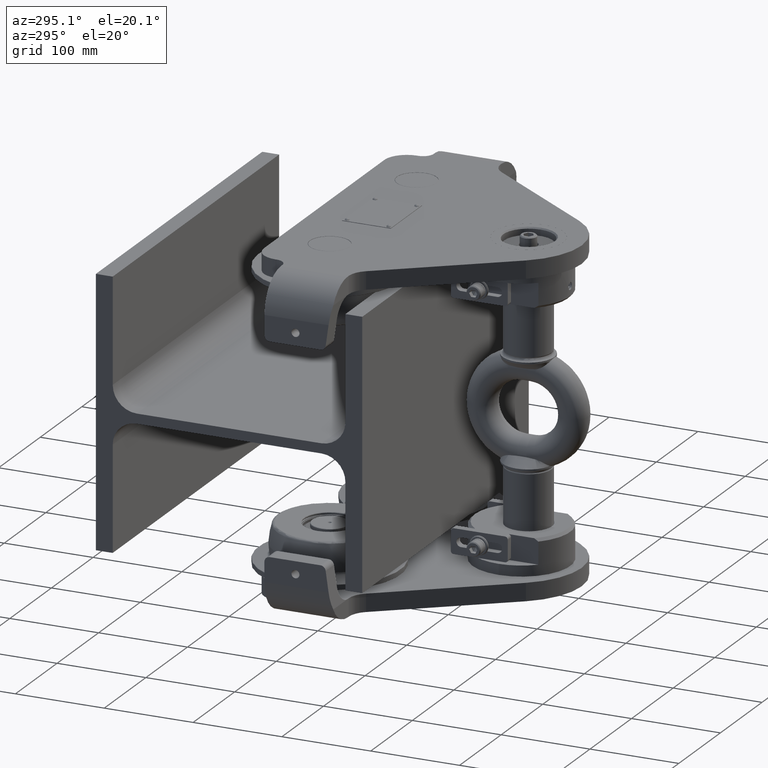
[diagram: clean part render]
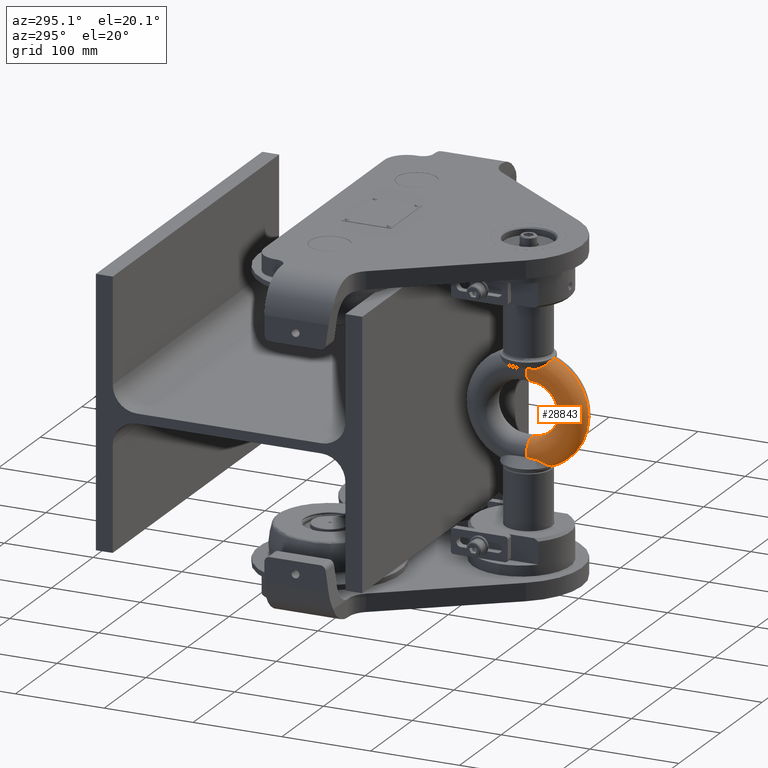
[diagram: same view with one face highlighted and labeled with its STEP entity id]
A machine part, auxiliary view. The second image highlights one B-rep face of the part: STEP entity #28843.
In plain terms, the highlighted toroidal blend (fillet) surface has major radius 46.5 mm and minor (blend) radius 16.5 mm.
Its self-contained STEP definition (entity closure, byte-faithful):
#124 = AXIS2_PLACEMENT_3D ( 'NONE', #29967, #49781, #50134 ) ;
#1295 = CARTESIAN_POINT ( 'NONE',  ( -16.14970968157150100, -258.5730623694667500, -48.85419018527901600 ) ) ;
#1317 = AXIS2_PLACEMENT_3D ( 'NONE', #53258, #21032, #28417 ) ;
#1372 = VERTEX_POINT ( 'NONE', #48301 ) ;
#1389 = CARTESIAN_POINT ( 'NONE',  ( -16.14970968157150100, -258.5730623694667500, -48.85419018527901600 ) ) ;
#1464 = CARTESIAN_POINT ( 'NONE',  ( -16.14970968157150100, -258.5730623694667500, 48.85419018527901600 ) ) ;
#1622 = CARTESIAN_POINT ( 'NONE',  ( -6.789701822044421000, -271.6939700852456100, -57.00000000000000000 ) ) ;
#1713 = VERTEX_POINT ( 'NONE', #1860 ) ;
#1748 = CARTESIAN_POINT ( 'NONE',  ( -14.41843490700063100, -265.7997126900801800, -51.71288681910633000 ) ) ;
#1860 = CARTESIAN_POINT ( 'NONE',  ( -16.50000000000000000, -248.4999999999993200, -46.50000000000000000 ) ) ;
#2122 = DIRECTION ( 'NONE',  ( 2.126349141558169100E-017, 1.000000000000000000, -2.126349141558169100E-017 ) ) ;
#2186 = CARTESIAN_POINT ( 'NONE',  ( -1.169121845982888900, -272.4823305312021400, 58.22322194431580300 ) ) ;
#2367 = CARTESIAN_POINT ( 'NONE',  ( -0.5821584581479668500, -272.5000000000001700, 58.24946351684271000 ) ) ;
#2482 = CARTESIAN_POINT ( 'NONE',  ( -5.615969907801971900E-016, -248.4999999999999700, 46.50000000000000000 ) ) ;
#3564 = CARTESIAN_POINT ( 'NONE',  ( -11.34520208129735000, -269.4414516651685900, 54.62953950804496400 ) ) ;
#3930 = CARTESIAN_POINT ( 'NONE',  ( -15.52368704440469900, -262.7567778237648800, 50.11044335773173900 ) ) ;
#4057 = DIRECTION ( 'NONE',  ( -2.126349141558174900E-017, -1.000000000000000000, -1.406712654387168700E-014 ) ) ;
#4701 = EDGE_CURVE ( 'NONE', #11834, #1713, #29710, .T. ) ;
#5197 = DIRECTION ( 'NONE',  ( 1.000000000000000000, -2.126349141558169100E-017, -4.160515420014122300E-018 ) ) ;
#5369 = CARTESIAN_POINT ( 'NONE',  ( -1.169121845982884300, -272.4823305312021400, -58.22322194431580300 ) ) ;
#5789 = ORIENTED_EDGE ( 'NONE', *, *, #43822, .F. ) ;
#5916 = CARTESIAN_POINT ( 'NONE',  ( -5.718996009394106600, -271.9518185962942300, -57.41698542281732600 ) ) ;
#5953 = CARTESIAN_POINT ( 'NONE',  ( -7.550609578108539100E-016, -248.4999999999999700, 1.306263848640637400E-016 ) ) ;
#6148 = CARTESIAN_POINT ( 'NONE',  ( -16.14970968157150100, -258.5730623694667500, 48.85419018527901600 ) ) ;
#6492 = CARTESIAN_POINT ( 'NONE',  ( -6.789701822044473400, -271.6939700852458400, 57.00000000000000000 ) ) ;
#6898 = ORIENTED_EDGE ( 'NONE', *, *, #10924, .T. ) ;
#7603 = CARTESIAN_POINT ( 'NONE',  ( -16.43063562197320200, -248.4999999999999700, 48.01136132607178600 ) ) ;
#9347 = AXIS2_PLACEMENT_3D ( 'NONE', #5953, #38659, #26345 ) ;
#9782 = B_SPLINE_CURVE_WITH_KNOTS ( 'NONE', 3,
 ( #6148, #22761, #47034, #38667, #38508, #10237 ),
 .UNSPECIFIED., .F., .F.,
 ( 4, 2, 4 ),
 ( 0.0000000000000000000, 0.005056082113877081300, 0.01011216422775416300 ),
 .UNSPECIFIED. ) ;
#9963 = CARTESIAN_POINT ( 'NONE',  ( -11.86317710511400000, -269.0009010043097500, -54.22865603293382000 ) ) ;
#10053 = CARTESIAN_POINT ( 'NONE',  ( -6.789701822044473400, -271.6939700852458400, 57.00000000000000000 ) ) ;
#10237 = CARTESIAN_POINT ( 'NONE',  ( -16.43063562197320200, -248.4999999999999700, 48.01136132607178600 ) ) ;
#10881 = EDGE_LOOP ( 'NONE', ( #14130, #5789, #26892, #6898, #16997, #37178, #43427, #21424, #11336, #23520, #17595, #27347 ) ) ;
#10924 = EDGE_CURVE ( 'NONE', #52300, #19396, #9782, .T. ) ;
#11279 = CARTESIAN_POINT ( 'NONE',  ( -15.83172462128890400, -261.2840947546191600, 49.53129400317468600 ) ) ;
#11336 = ORIENTED_EDGE ( 'NONE', *, *, #19872, .T. ) ;
#11442 = CARTESIAN_POINT ( 'NONE',  ( -9.541050357058042100, -270.6182330936538800, 55.73941017199112500 ) ) ;
#11538 = EDGE_CURVE ( 'NONE', #46534, #11834, #26295, .T. ) ;
#11834 = VERTEX_POINT ( 'NONE', #38594 ) ;
#11996 = CARTESIAN_POINT ( 'NONE',  ( -16.14970968157150100, -258.5730623694667500, 48.85419018527901600 ) ) ;
#13387 = VERTEX_POINT ( 'NONE', #25268 ) ;
#13468 = CIRCLE ( 'NONE', #34353, 63.00000000000000000 ) ;
#13770 = CARTESIAN_POINT ( 'NONE',  ( -11.32339452381541100, -269.4412280998598700, -54.63134564717974900 ) ) ;
#13872 = CARTESIAN_POINT ( 'NONE',  ( -4.615686157747745700, -272.1531507364128400, 57.72578106997546900 ) ) ;
#13956 = CARTESIAN_POINT ( 'NONE',  ( -15.23141514536810000, -263.8315885877948400, -50.59971117742660600 ) ) ;
#14130 = ORIENTED_EDGE ( 'NONE', *, *, #40405, .F. ) ;
#14135 = CARTESIAN_POINT ( 'NONE',  ( -12.86108947759746200, -268.0671371026022000, -53.39142813885433000 ) ) ;
#14310 = CARTESIAN_POINT ( 'NONE',  ( -8.226983262885905600, -271.2627356857553300, -56.40426757459351800 ) ) ;
#14332 = EDGE_CURVE ( 'NONE', #48895, #29801, #40669, .T. ) ;
#14506 = CARTESIAN_POINT ( 'NONE',  ( -14.57284169700256300, -265.4847800982709600, -51.51764444182787600 ) ) ;
#14535 = VERTEX_POINT ( 'NONE', #48859 ) ;
#14621 = AXIS2_PLACEMENT_3D ( 'NONE', #28211, #4057, #24067 ) ;
#16997 = ORIENTED_EDGE ( 'NONE', *, *, #27534, .F. ) ;
#17121 = DIRECTION ( 'NONE',  ( 2.126349141558169400E-017, 1.000000000000000000, 0.0000000000000000000 ) ) ;
#17527 = CIRCLE ( 'NONE', #14621, 16.50000000000000000 ) ;
#17595 = ORIENTED_EDGE ( 'NONE', *, *, #14332, .T. ) ;
#17845 = CARTESIAN_POINT ( 'NONE',  ( -16.27217791761417900, -256.9057744790297900, -48.60082342732086900 ) ) ;
#17966 = CARTESIAN_POINT ( 'NONE',  ( -16.09073594290872200, -259.3741769979857800, -48.97655935730084300 ) ) ;
#18323 = CARTESIAN_POINT ( 'NONE',  ( -9.542474760975393300, -270.6366440345710800, -55.74942739138111800 ) ) ;
#18331 = CIRCLE ( 'NONE', #124, 16.50000000000000000 ) ;
#19396 = VERTEX_POINT ( 'NONE', #7603 ) ;
#19428 = CARTESIAN_POINT ( 'NONE',  ( -2.775728176403982500E-015, -248.4999999999999700, 30.00000000000000000 ) ) ;
#19658 = AXIS2_PLACEMENT_3D ( 'NONE', #2482, #2122, #47324 ) ;
#19787 = CARTESIAN_POINT ( 'NONE',  ( -13.51089859848823100, -267.2638977733029200, 52.73977358315009700 ) ) ;
#19872 = EDGE_CURVE ( 'NONE', #1713, #1372, #17527, .T. ) ;
#19969 = CARTESIAN_POINT ( 'NONE',  ( -16.09073587124079900, -259.3741779715415400, 48.97655950601009800 ) ) ;
#20133 = CARTESIAN_POINT ( 'NONE',  ( -10.47097514471091800, -270.0534991549014300, 55.19895987007695500 ) ) ;
#21032 = DIRECTION ( 'NONE',  ( 1.000000000000000000, -2.126349141558169100E-017, -4.160515420014122300E-018 ) ) ;
#21424 = ORIENTED_EDGE ( 'NONE', *, *, #4701, .T. ) ;
#21429 = CARTESIAN_POINT ( 'NONE',  ( -16.43063562197319900, -248.4999999999993200, -48.01136132607175700 ) ) ;
#21815 = CARTESIAN_POINT ( 'NONE',  ( -1.507732535138539800E-015, -272.5000000000001700, -58.24946351684271700 ) ) ;
#22296 = CARTESIAN_POINT ( 'NONE',  ( -14.99815633690421300, -264.5137042511241200, -50.95146419734153700 ) ) ;
#22482 = CARTESIAN_POINT ( 'NONE',  ( -16.00775697945099600, -260.1516179651798100, -49.16671881102170300 ) ) ;
#22761 = CARTESIAN_POINT ( 'NONE',  ( -16.27217791761414400, -256.9057744790299000, 48.60082342732093300 ) ) ;
#23099 = DIRECTION ( 'NONE',  ( -2.126349141558174900E-017, -1.000000000000000000, -1.406712654387168700E-014 ) ) ;
#23162 = CARTESIAN_POINT ( 'NONE',  ( -6.789701822044421000, -271.6939700852456100, -57.00000000000000000 ) ) ;
#23245 = B_SPLINE_CURVE_WITH_KNOTS ( 'NONE', 3,
 ( #21429, #50054, #42293, #41742, #17845, #1295 ),
 .UNSPECIFIED., .F., .F.,
 ( 4, 2, 4 ),
 ( 2.775557561562891400E-017, 0.005056082113877437800, 0.01011216422775484800 ),
 .UNSPECIFIED. ) ;
#23520 = ORIENTED_EDGE ( 'NONE', *, *, #45305, .T. ) ;
#24067 = DIRECTION ( 'NONE',  ( 1.000000000000000000, 0.0000000000000000000, 0.0000000000000000000 ) ) ;
#24291 = CARTESIAN_POINT ( 'NONE',  ( -12.85498062700979300, -268.0516255899330500, 53.38296045857281800 ) ) ;
#24542 = CARTESIAN_POINT ( 'NONE',  ( -1.507732535138539800E-015, -272.5000000000001700, -58.24946351684271700 ) ) ;
#25121 = TOROIDAL_SURFACE ( 'NONE', #9347, 46.50000000000000000, 16.50000000000000000 ) ;
#25268 = CARTESIAN_POINT ( 'NONE',  ( -16.50000000000000000, -248.4999999999999700, 46.50000000000000000 ) ) ;
#25561 = CARTESIAN_POINT ( 'NONE',  ( -16.14970968157150100, -258.5730623694667500, -48.85419018527901600 ) ) ;
#26244 = CARTESIAN_POINT ( 'NONE',  ( -15.60961632101510500, -262.3966882880848700, -49.95687587011565300 ) ) ;
#26295 = CIRCLE ( 'NONE', #1317, 30.00000000000000000 ) ;
#26345 = DIRECTION ( 'NONE',  ( -4.160515420014122300E-018, 1.625079160297210900E-050, -1.000000000000000000 ) ) ;
#26424 = CARTESIAN_POINT ( 'NONE',  ( -13.30570346881358100, -267.5580710833979800, -52.95966035064181200 ) ) ;
#26870 = CARTESIAN_POINT ( 'NONE',  ( -2.337159246426804500, -272.4115896409632000, 58.11736992380962600 ) ) ;
#26892 = ORIENTED_EDGE ( 'NONE', *, *, #51714, .T. ) ;
#27347 = ORIENTED_EDGE ( 'NONE', *, *, #42111, .T. ) ;
#27534 = EDGE_CURVE ( 'NONE', #13387, #19396, #34215, .T. ) ;
#27781 = B_SPLINE_CURVE_WITH_KNOTS ( 'NONE', 3,
 ( #6492, #39179, #43734, #48583, #11442, #40032, #20133, #3564, #44423, #36640, #24291, #32316, #19787, #48395, #28077, #3930, #44809, #44629, #11279, #48771, #19969, #11996 ),
 .UNSPECIFIED., .F., .F.,
 ( 4, 2, 2, 2, 2, 2, 2, 2, 2, 2, 4 ),
 ( 1.323970232273443100E-017, 0.002407351298757583600, 0.003611026948136372600, 0.004814702597515162000, 0.007222053896272820700, 0.008425729545651693800, 0.009629405195030568700, 0.01444410779254603700, 0.01564778344192501900, 0.01685145909130400200, 0.01925881039006211900 ),
 .UNSPECIFIED. ) ;
#28077 = CARTESIAN_POINT ( 'NONE',  ( -15.03840813540668700, -264.5426066188140900, 50.92307947960819800 ) ) ;
#28211 = CARTESIAN_POINT ( 'NONE',  ( -9.485249248414967200E-016, -248.4999999999993200, -46.50000000000000000 ) ) ;
#28417 = DIRECTION ( 'NONE',  ( 2.126349141558168800E-017, 1.000000000000000000, 0.0000000000000000000 ) ) ;
#28843 = ADVANCED_FACE ( 'NONE', ( #52658 ), #25121, .T. ) ;
#29127 = VERTEX_POINT ( 'NONE', #37008 ) ;
#29483 = B_SPLINE_CURVE_WITH_KNOTS ( 'NONE', 3,
 ( #10053, #47205, #13872, #51364, #26870, #2186, #2367, #39529 ),
 .UNSPECIFIED., .F., .F.,
 ( 4, 2, 2, 4 ),
 ( 5.568977577559528000E-007, 0.003483977110263269100, 0.005225687216516025300, 0.006967397322768782400 ),
 .UNSPECIFIED. ) ;
#29710 = CIRCLE ( 'NONE', #52603, 16.50000000000000000 ) ;
#29801 = VERTEX_POINT ( 'NONE', #23162 ) ;
#29868 = CARTESIAN_POINT ( 'NONE',  ( -7.550609578108539100E-016, -248.4999999999999700, 1.306263848640637400E-016 ) ) ;
#29967 = CARTESIAN_POINT ( 'NONE',  ( -5.615969907801971900E-016, -248.4999999999999700, 46.50000000000000000 ) ) ;
#30419 = CARTESIAN_POINT ( 'NONE',  ( -4.615686157747730600, -272.1531507364127800, -57.72578106997545400 ) ) ;
#30888 = CARTESIAN_POINT ( 'NONE',  ( -6.789701822044421000, -271.6939700852456100, -57.00000000000000000 ) ) ;
#32316 = CARTESIAN_POINT ( 'NONE',  ( -13.29989869337609300, -267.5356464809470400, 52.95500724111313000 ) ) ;
#34215 = CIRCLE ( 'NONE', #19658, 16.50000000000000000 ) ;
#34289 = CARTESIAN_POINT ( 'NONE',  ( -0.5821584581479653000, -272.5000000000001700, -58.24946351684271000 ) ) ;
#34353 = AXIS2_PLACEMENT_3D ( 'NONE', #29868, #5197, #17121 ) ;
#34597 = CARTESIAN_POINT ( 'NONE',  ( -12.12155273087833500, -268.7740795402926300, -54.02184071569097800 ) ) ;
#36640 = CARTESIAN_POINT ( 'NONE',  ( -12.62039186310729200, -268.2968772376511300, 53.59638425016678600 ) ) ;
#37008 = CARTESIAN_POINT ( 'NONE',  ( -6.789701822044473400, -271.6939700852458400, 57.00000000000000000 ) ) ;
#37178 = ORIENTED_EDGE ( 'NONE', *, *, #47854, .F. ) ;
#37686 = B_SPLINE_CURVE_WITH_KNOTS ( 'NONE', 3,
 ( #1622, #5916, #30419, #47001, #46282, #5369, #34289, #21815 ),
 .UNSPECIFIED., .F., .F.,
 ( 4, 2, 2, 4 ),
 ( 5.568977577758083100E-007, 0.003483977110263278200, 0.005225687216516029600, 0.006967397322768780600 ),
 .UNSPECIFIED. ) ;
#38508 = CARTESIAN_POINT ( 'NONE',  ( -16.42524475720238200, -250.1868489510156100, 48.06996765217583300 ) ) ;
#38594 = CARTESIAN_POINT ( 'NONE',  ( -2.775728176403985600E-015, -248.4999999999995200, -30.00000000000000000 ) ) ;
#38659 = DIRECTION ( 'NONE',  ( 1.000000000000000000, -2.126349141558169100E-017, -4.160515420014122300E-018 ) ) ;
#38667 = CARTESIAN_POINT ( 'NONE',  ( -16.41022114154714000, -251.8710428577483600, 48.15709499626952100 ) ) ;
#38740 = CARTESIAN_POINT ( 'NONE',  ( -11.04097899882738800, -269.6549622679524400, -54.82810784448082600 ) ) ;
#39095 = CARTESIAN_POINT ( 'NONE',  ( -15.76393853991887900, -261.6594500412759300, -49.66678633498651900 ) ) ;
#39179 = CARTESIAN_POINT ( 'NONE',  ( -7.530738171597009900, -271.5203600067262100, 56.70943172050239400 ) ) ;
#39529 = CARTESIAN_POINT ( 'NONE',  ( -1.023036952798754600E-015, -272.5000000000001700, 58.24946351684271700 ) ) ;
#40032 = CARTESIAN_POINT ( 'NONE',  ( -10.16649636255468400, -270.2501418079609200, 55.38407336389795400 ) ) ;
#40405 = EDGE_CURVE ( 'NONE', #14535, #45098, #13468, .T. ) ;
#40669 = B_SPLINE_CURVE_WITH_KNOTS ( 'NONE', 3,
 ( #1389, #17966, #22482, #42584, #39095, #26244, #46768, #13956, #22296, #14506, #1748, #50912, #43127, #26424, #14135, #34597, #9963, #13770, #38740, #42776, #18323, #14310, #42962, #30888 ),
 .UNSPECIFIED., .F., .F.,
 ( 4, 2, 2, 2, 2, 2, 2, 2, 2, 2, 2, 4 ),
 ( 5.763878168445254200E-017, 0.002409449002536011500, 0.003614173503803910500, 0.004818898005071808700, 0.007228347007607745600, 0.008433071508875709200, 0.009637796010143672900, 0.01204724501267970600, 0.01325196951394777700, 0.01445669401521584700, 0.01686614301775189700, 0.01927559202028795000 ),
 .UNSPECIFIED. ) ;
#41742 = CARTESIAN_POINT ( 'NONE',  ( -16.33325860116091400, -255.2304775282658800, -48.42271561141748000 ) ) ;
#42111 = EDGE_CURVE ( 'NONE', #29801, #45098, #37686, .T. ) ;
#42293 = CARTESIAN_POINT ( 'NONE',  ( -16.41022114154715800, -251.8710428577478500, -48.15709499626950000 ) ) ;
#42584 = CARTESIAN_POINT ( 'NONE',  ( -15.83134933537295700, -261.2863289760058500, -49.53205681885104600 ) ) ;
#42776 = CARTESIAN_POINT ( 'NONE',  ( -10.16253130831769800, -270.2683548030104200, -55.39900076942998900 ) ) ;
#42962 = CARTESIAN_POINT ( 'NONE',  ( -7.531583063176285000, -271.5201620654329400, -56.70910042947640800 ) ) ;
#43127 = CARTESIAN_POINT ( 'NONE',  ( -13.89661665512555400, -266.7083405397442600, -52.32551736131435400 ) ) ;
#43427 = ORIENTED_EDGE ( 'NONE', *, *, #11538, .T. ) ;
#43734 = CARTESIAN_POINT ( 'NONE',  ( -8.228052558569421700, -271.2625594879944500, 56.40392126491671800 ) ) ;
#43822 = EDGE_CURVE ( 'NONE', #29127, #14535, #29483, .T. ) ;
#44423 = CARTESIAN_POINT ( 'NONE',  ( -11.88198488525436900, -269.0037736557662800, 54.22649970755971100 ) ) ;
#44629 = CARTESIAN_POINT ( 'NONE',  ( -15.76447316238308000, -261.6565579584140600, 49.66572867952376700 ) ) ;
#44809 = CARTESIAN_POINT ( 'NONE',  ( -15.61060803828187100, -262.3922853047753300, 49.95506384522685300 ) ) ;
#45098 = VERTEX_POINT ( 'NONE', #24542 ) ;
#45305 = EDGE_CURVE ( 'NONE', #1372, #48895, #23245, .T. ) ;
#46282 = CARTESIAN_POINT ( 'NONE',  ( -2.337159246426796500, -272.4115896409632000, -58.11736992380962600 ) ) ;
#46534 = VERTEX_POINT ( 'NONE', #19428 ) ;
#46768 = CARTESIAN_POINT ( 'NONE',  ( -15.52239812837067800, -262.7618931237417400, -50.11268272700761600 ) ) ;
#47001 = CARTESIAN_POINT ( 'NONE',  ( -2.912825082084845400, -272.3590081516811100, -58.03848569479154000 ) ) ;
#47034 = CARTESIAN_POINT ( 'NONE',  ( -16.33325860116090000, -255.2304775282662200, 48.42271561141748700 ) ) ;
#47205 = CARTESIAN_POINT ( 'NONE',  ( -5.718996009394122600, -271.9518185962941200, 57.41698542281732600 ) ) ;
#47324 = DIRECTION ( 'NONE',  ( 1.000000000000000000, 0.0000000000000000000, 0.0000000000000000000 ) ) ;
#47545 = CARTESIAN_POINT ( 'NONE',  ( -9.485249248414967200E-016, -248.4999999999993200, -46.50000000000000000 ) ) ;
#47854 = EDGE_CURVE ( 'NONE', #46534, #13387, #18331, .T. ) ;
#48301 = CARTESIAN_POINT ( 'NONE',  ( -16.43063562197319900, -248.4999999999993200, -48.01136132607175700 ) ) ;
#48395 = CARTESIAN_POINT ( 'NONE',  ( -14.49674230936780400, -265.8416792911704600, 51.68017325012481000 ) ) ;
#48583 = CARTESIAN_POINT ( 'NONE',  ( -9.219653869752114900, -270.7901185588439100, 55.91003089512495400 ) ) ;
#48771 = CARTESIAN_POINT ( 'NONE',  ( -16.00779564519317000, -260.1510085656619300, 49.16660984428266800 ) ) ;
#48859 = CARTESIAN_POINT ( 'NONE',  ( -1.023036952798754600E-015, -272.5000000000001700, 58.24946351684271700 ) ) ;
#48895 = VERTEX_POINT ( 'NONE', #25561 ) ;
#49781 = DIRECTION ( 'NONE',  ( 2.126349141558169100E-017, 1.000000000000000000, -2.126349141558169100E-017 ) ) ;
#50054 = CARTESIAN_POINT ( 'NONE',  ( -16.42524475720237500, -250.1868489510150700, -48.06996765217579800 ) ) ;
#50134 = DIRECTION ( 'NONE',  ( 1.000000000000000000, 0.0000000000000000000, 0.0000000000000000000 ) ) ;
#50912 = CARTESIAN_POINT ( 'NONE',  ( -14.08090010373158700, -266.4107620654677900, -52.11621288737720200 ) ) ;
#51364 = CARTESIAN_POINT ( 'NONE',  ( -2.912825082084855100, -272.3590081516811100, 58.03848569479153200 ) ) ;
#51714 = EDGE_CURVE ( 'NONE', #29127, #52300, #27781, .T. ) ;
#52300 = VERTEX_POINT ( 'NONE', #1464 ) ;
#52534 = DIRECTION ( 'NONE',  ( 1.000000000000000000, 0.0000000000000000000, 0.0000000000000000000 ) ) ;
#52603 = AXIS2_PLACEMENT_3D ( 'NONE', #47545, #23099, #52534 ) ;
#52658 = FACE_OUTER_BOUND ( 'NONE', #10881, .T. ) ;
#53258 = CARTESIAN_POINT ( 'NONE',  ( -2.775728176403987200E-015, -248.4999999999999700, 1.306263848640637400E-016 ) ) ;